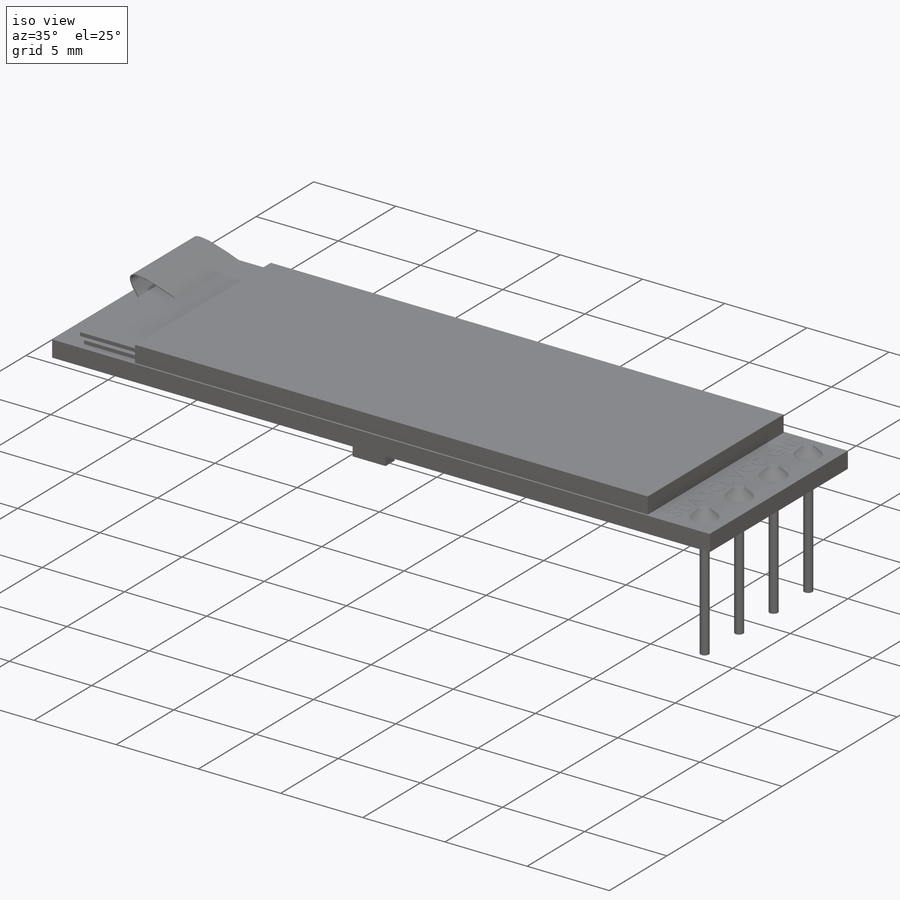
[diagram: iso view]
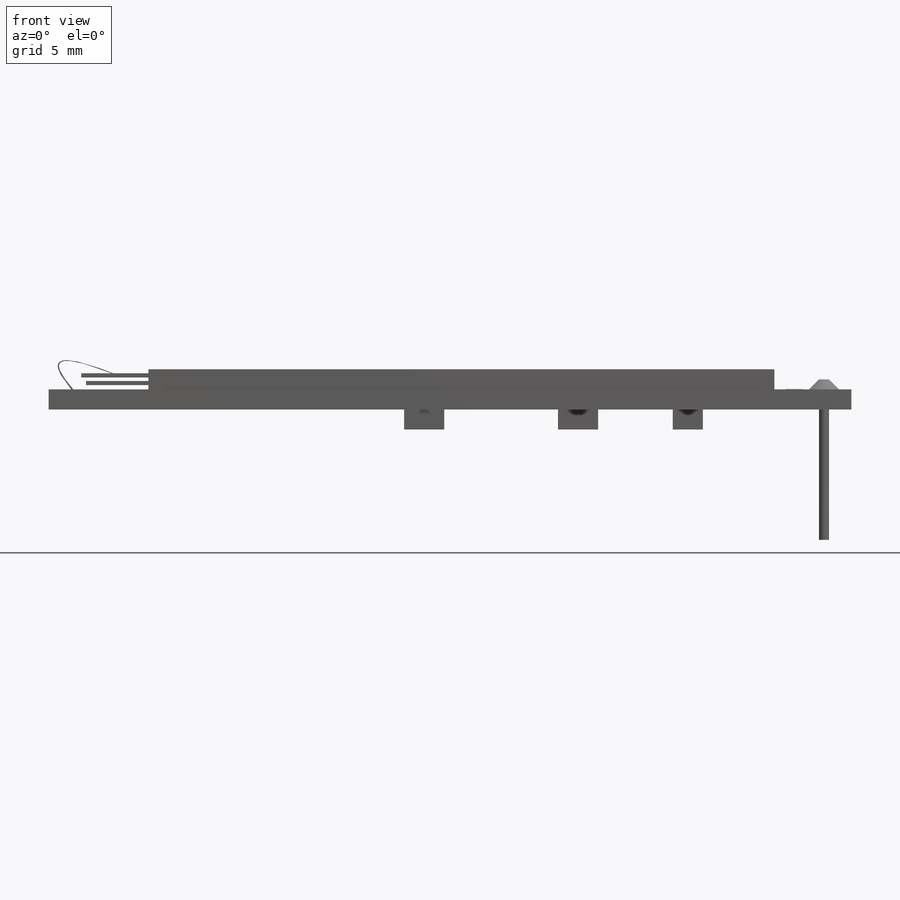
[diagram: front view]
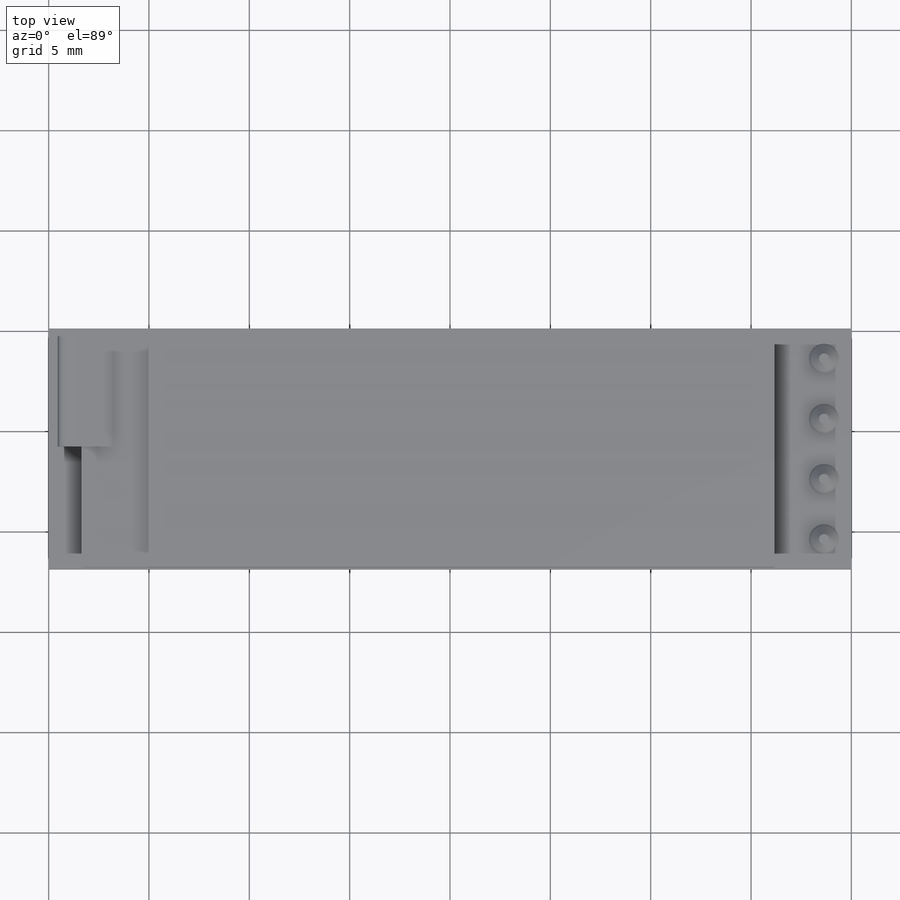
[diagram: top view]
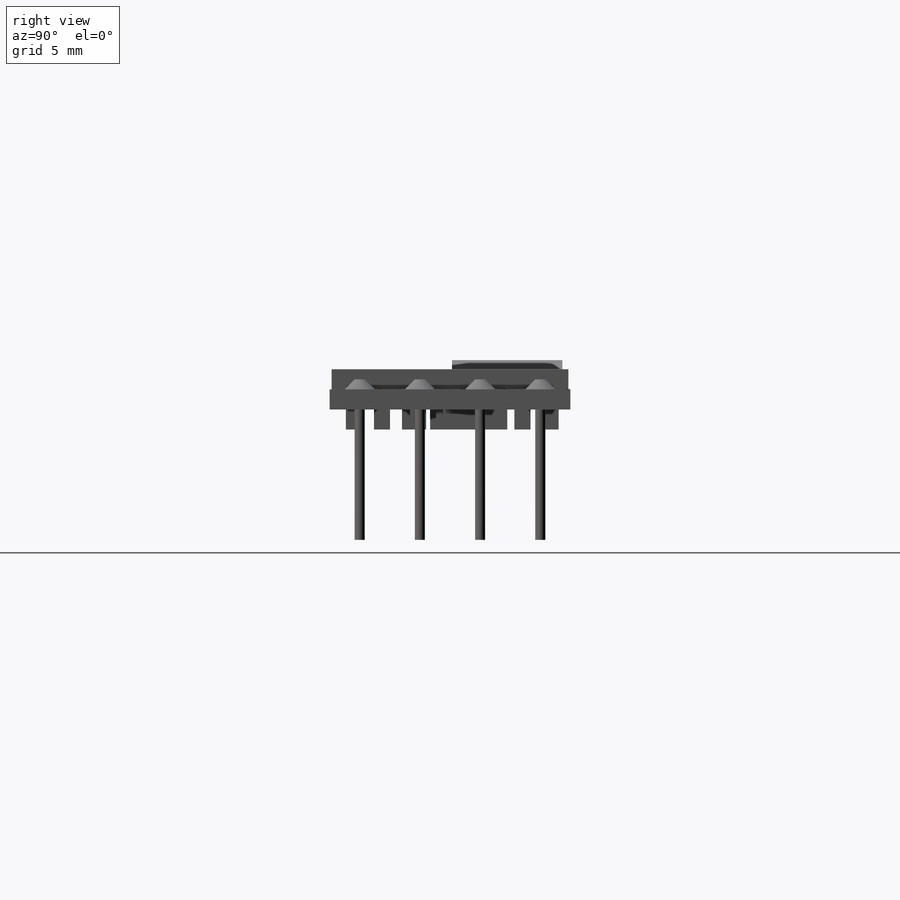
[diagram: right view]
SOLIDWORKS PART (.sldprt)
format: sldprt  version: not decoded by parser v0  size: 611,328 bytes
history: native  units: mm
features: sketch x9, extrude x9, material x1, chamfer x1 (+13 scaffold rows collapsed)
feature tree (33):
  scaffold x13  (default folders/planes/origin — collapsed)
  material  "Material <not specified>"
  sketch  "Sketch1"  dims[D1=12.0mm D2=40.0mm]
  extrude  "Boss-Extrude1"  Depth=1mm
  sketch  "Sketch2"  dims[D1=0.1mm D2=0.1mm]
  extrude  "Boss-Extrude3"  Depth=1mm
  sketch  "Sketch3"
  extrude  "Boss-Extrude4"  Depth=11.5mm
  sketch  "Sketch4"  dims[D1=2.5mm]
  extrude  "Boss-Extrude5"  Depth=5.5mm
  sketch  "Sketch5"  dims[D1=1.5mm D2=1.5mm D3=1.5mm D4=1.5mm D5=1.5mm D6=1.5mm D7=3.0mm D8=3.0mm]
  extrude  "Boss-Extrude6"  Depth=0.5mm
  chamfer  "Chamfer1"  Distance=0.5mm Angle=45deg
  sketch  "Sketch6"
  extrude  "Boss-Extrude7"  Depth=8mm
  sketch  "Sketch7"  dims[D1=1.5mm D2=3.2mm]
  extrude  "Boss-Extrude8"  Depth=1mm
  sketch  "Sketch8"  dims[D1=0.8mm D2=2.0mm D4=2.0mm D3=8.0 D5=5.0]
  extrude  "Boss-Extrude9"  Depth=1mm
  sketch  "Sketch9"
  extrude  "Boss-Extrude10"  Depth=0.01mm
decode coverage: 16 of 19 modeling features carry decoded parameters
note: suppression state not decoded; provenance and decode notes live in map.json
